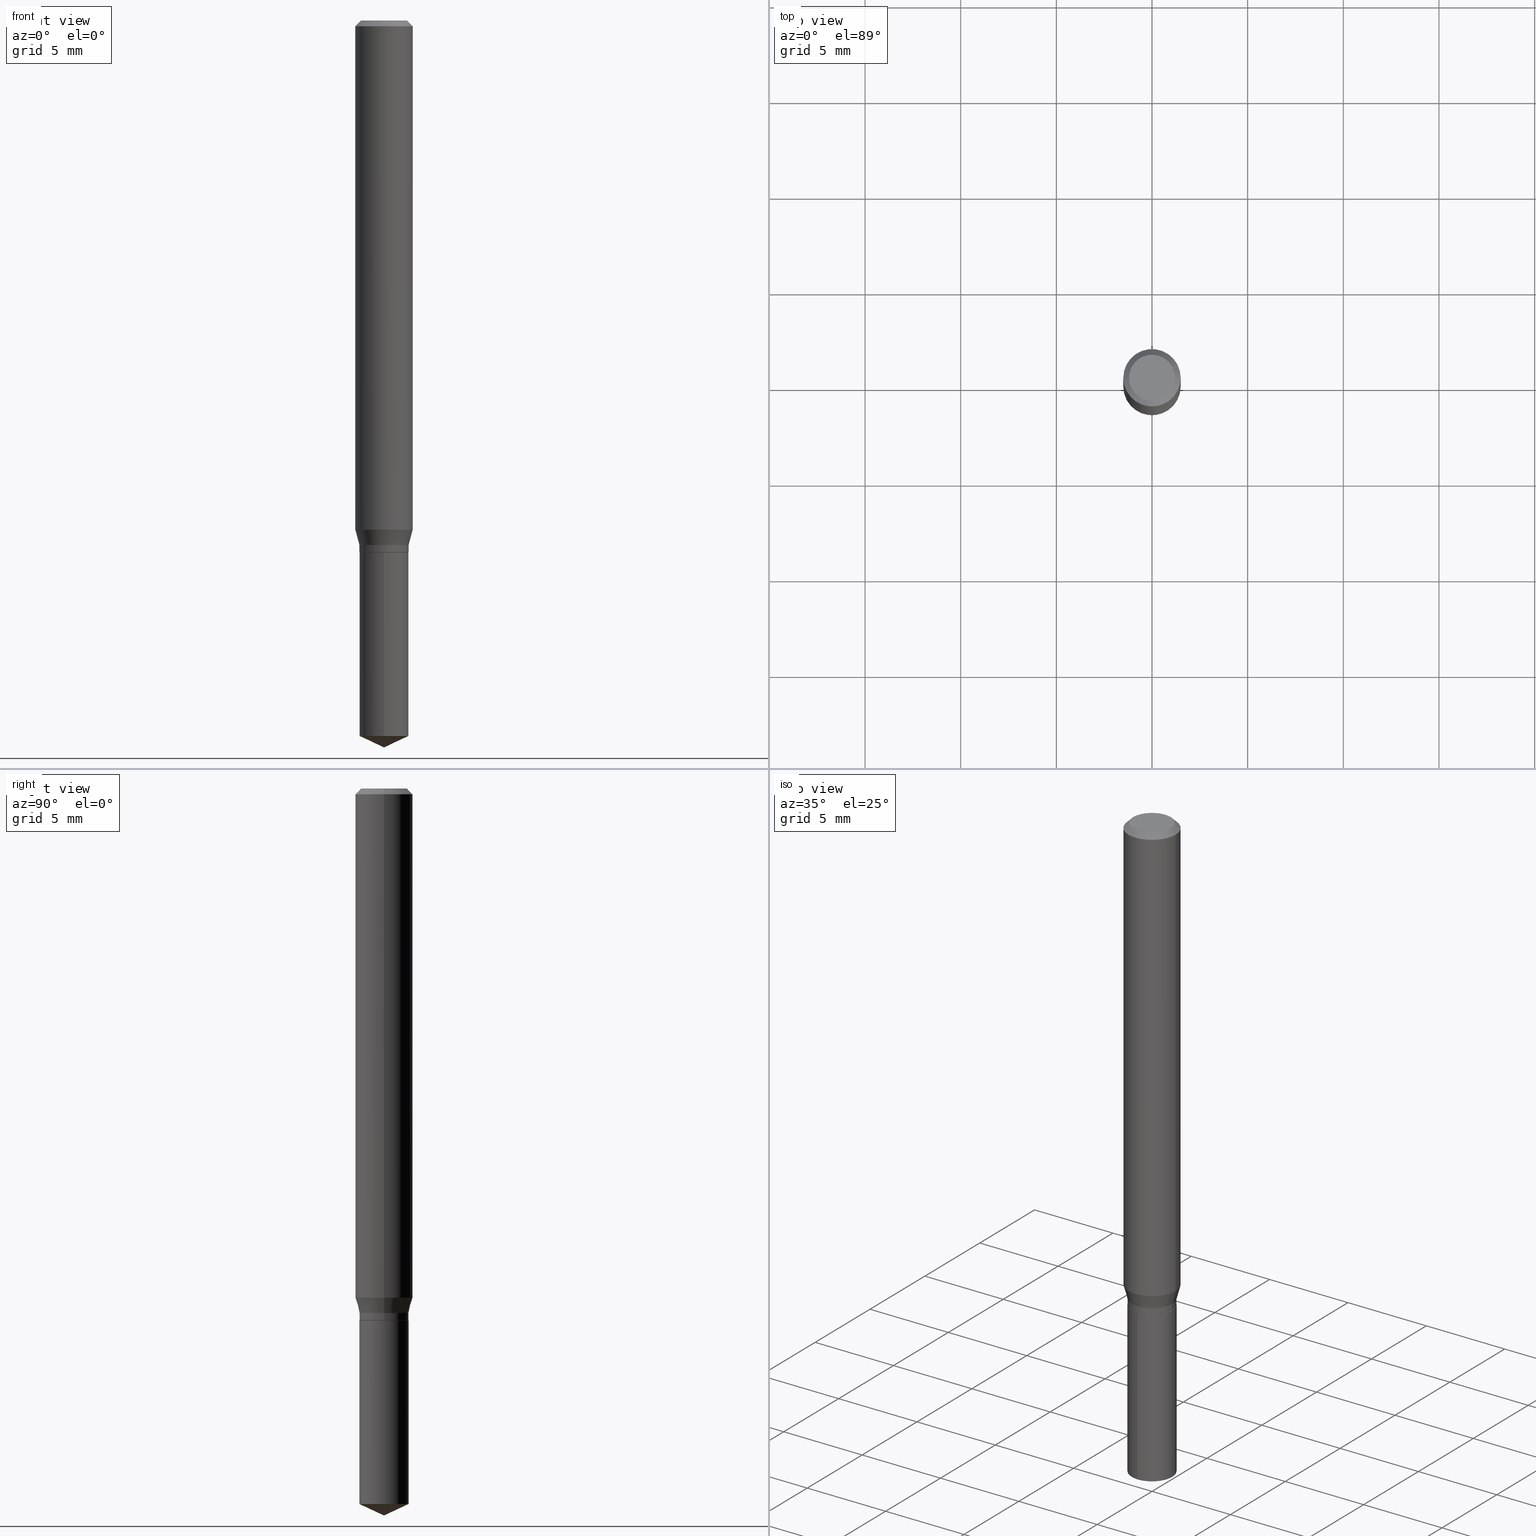
[diagram: canonical four-view strip — front | top / right | iso, engineering-drawing reading convention]
A machine part, canonical four-view strip (front | top / right | iso — engineering-drawing reading convention). The complete STEP part file that produces these views, byte-faithful:
ISO-10303-21;
HEADER;
FILE_DESCRIPTION (( 'STEP AP203' ),
    '1' );
FILE_NAME ('07669.STEP',
    '2024-04-24T00:43:24',
    ( '' ),
    ( '' ),
    'SwSTEP 2.0',
    'SolidWorks 2023',
    '' );
FILE_SCHEMA (( 'CONFIG_CONTROL_DESIGN' ));
ENDSEC;

DATA;
#1 = CARTESIAN_POINT ( 'NONE',  ( 3.595346242946467784E-16, 0.05059999999999487130, -1.472504832497357530 ) ) ;
#2 = APPROVAL_STATUS ( 'not_yet_approved' ) ;
#3 = EDGE_CURVE ( 'NONE', #26, #203, #301, .T. ) ;
#4 = VERTEX_POINT ( 'NONE', #1 ) ;
#5 = EDGE_LOOP ( 'NONE', ( #65, #190, #283, #432 ) ) ;
#6 = ORIENTED_EDGE ( 'NONE', *, *, #319, .F. ) ;
#7 = DIRECTION ( 'NONE',  ( -2.445468806185136877E-29, 3.491481338843145188E-15, 1.000000000000000000 ) ) ;
#8 = CLOSED_SHELL ( 'NONE', ( #185, #256, #265, #116, #273 ) ) ;
#9 = CIRCLE ( 'NONE', #302, 0.04724000000000000421 ) ;
#10 = COORDINATED_UNIVERSAL_TIME_OFFSET ( 5, 0, .BEHIND. ) ;
#11 = VERTEX_POINT ( 'NONE', #483 ) ;
#12 = LINE ( 'NONE', #137, #309 ) ;
#13 = ORIENTED_EDGE ( 'NONE', *, *, #314, .T. ) ;
#14 = FACE_OUTER_BOUND ( 'NONE', #462, .T. ) ;
#15 = EDGE_CURVE ( 'NONE', #267, #223, #191, .T. ) ;
#16 = CALENDAR_DATE ( 2024, 23, 4 ) ;
#17 = ORIENTED_EDGE ( 'NONE', *, *, #362, .T. ) ;
#18 = FACE_OUTER_BOUND ( 'NONE', #472, .T. ) ;
#19 = PRODUCT_DEFINITION_FORMATION_WITH_SPECIFIED_SOURCE ( 'ANY', '', #107, .NOT_KNOWN. ) ;
#20 = DIRECTION ( 'NONE',  ( -2.445458899330790108E-29, 3.491495526022433205E-15, 1.000000000000000000 ) ) ;
#21 = EDGE_LOOP ( 'NONE', ( #322, #187, #303, #175 ) ) ;
#22 = ORIENTED_EDGE ( 'NONE', *, *, #470, .T. ) ;
#23 = ORIENTED_EDGE ( 'NONE', *, *, #476, .T. ) ;
#24 = EDGE_CURVE ( 'NONE', #4, #465, #54, .T. ) ;
#25 = CARTESIAN_POINT ( 'NONE',  ( 4.132873053354867254E-48, -5.900647395337818946E-34, -1.690012582823346072E-19 ) ) ;
#26 = VERTEX_POINT ( 'NONE', #123 ) ;
#27 = DIRECTION ( 'NONE',  ( 6.982962677686265922E-15, 1.000000000000000000, -3.491495526022433599E-15 ) ) ;
#28 = CONICAL_SURFACE ( 'NONE', #104, 0.05009999999999999870, 0.7853981633972775267 ) ;
#29 = FACE_OUTER_BOUND ( 'NONE', #86, .T. ) ;
#30 = LOCAL_TIME ( 20, 43, 24.00000000000000000, #205 ) ;
#31 = CARTESIAN_POINT ( 'NONE',  ( 2.676565608369631794E-29, -3.821426325363822773E-15, -1.094499999999999806 ) ) ;
#32 = ADVANCED_FACE ( 'NONE', ( #236 ), #102, .T. ) ;
#33 = DIRECTION ( 'NONE',  ( -2.445468806185136597E-29, 3.491481338843145583E-15, 1.000000000000000000 ) ) ;
#34 = FACE_OUTER_BOUND ( 'NONE', #216, .T. ) ;
#35 = UNCERTAINTY_MEASURE_WITH_UNIT (LENGTH_MEASURE( 1.000000000000000082E-05 ), #459, 'distance_accuracy_value', 'NONE');
#36 = CARTESIAN_POINT ( 'NONE',  ( 8.265746106709734507E-48, -1.180129479067563789E-33, -3.380025165646692144E-19 ) ) ;
#37 = DIRECTION ( 'NONE',  ( -2.445458899330790108E-29, 3.491495526022433205E-15, 1.000000000000000000 ) ) ;
#38 = DIRECTION ( 'NONE',  ( -2.445468806185136597E-29, 3.491481338843145583E-15, 1.000000000000000000 ) ) ;
#39 = AXIS2_PLACEMENT_3D ( 'NONE', #255, #437, #46 ) ;
#40 = CC_DESIGN_PERSON_AND_ORGANIZATION_ASSIGNMENT ( #286, #210, ( #482 ) ) ;
#41 = DIRECTION ( 'NONE',  ( -2.445468806185136597E-29, 3.491481338843145583E-15, 1.000000000000000000 ) ) ;
#42 = PERSON_AND_ORGANIZATION ( #79, #120 ) ;
#43 = DIRECTION ( 'NONE',  ( -2.445468806185136597E-29, 3.491481338843145583E-15, 1.000000000000000000 ) ) ;
#44 = VECTOR ( 'NONE', #154, 39.37007874015748143 ) ;
#45 = DATE_AND_TIME ( #16, #490 ) ;
#46 = DIRECTION ( 'NONE',  ( 1.000000000000000000, -6.982962677686266711E-15, 4.876176775795936353E-29 ) ) ;
#47 = EDGE_CURVE ( 'NONE', #441, #171, #166, .T. ) ;
#48 = ORIENTED_EDGE ( 'NONE', *, *, #179, .F. ) ;
#49 = FACE_OUTER_BOUND ( 'NONE', #421, .T. ) ;
#50 = APPROVAL_ROLE ( '' ) ;
#51 = CARTESIAN_POINT ( 'NONE',  ( 2.676565608369631794E-29, -3.821426325363822773E-15, -1.094499999999999806 ) ) ;
#52 = CARTESIAN_POINT ( 'NONE',  ( 2.562274595626701165E-29, -3.658249049423866489E-15, -1.047764170676042550 ) ) ;
#53 = ORIENTED_EDGE ( 'NONE', *, *, #370, .F. ) ;
#54 = CIRCLE ( 'NONE', #455, 0.05059999999999999915 ) ;
#55 = CC_DESIGN_PERSON_AND_ORGANIZATION_ASSIGNMENT ( #91, #89, ( #19 ) ) ;
#56 = CALENDAR_DATE ( 2024, 23, 4 ) ;
#57 = CC_DESIGN_APPROVAL ( #235, ( #217 ) ) ;
#58 = DIRECTION ( 'NONE',  ( -2.445468806185136597E-29, 3.491481338843145583E-15, 1.000000000000000000 ) ) ;
#59 = ORIENTED_EDGE ( 'NONE', *, *, #179, .T. ) ;
#60 = DIRECTION ( 'NONE',  ( -2.445468806185136597E-29, 3.491481338843145583E-15, 1.000000000000000000 ) ) ;
#61 = VERTEX_POINT ( 'NONE', #75 ) ;
#62 = ORIENTED_EDGE ( 'NONE', *, *, #445, .F. ) ;
#63 = CARTESIAN_POINT ( 'NONE',  ( 2.675342873966538993E-29, -3.819680584694400481E-15, -1.093999999999999861 ) ) ;
#64 = DIRECTION ( 'NONE',  ( -2.445468806185136597E-29, 3.491481338843145583E-15, 1.000000000000000000 ) ) ;
#65 = ORIENTED_EDGE ( 'NONE', *, *, #228, .F. ) ;
#66 = DIRECTION ( 'NONE',  ( -2.445458899330790108E-29, 3.491495526022433205E-15, 1.000000000000000000 ) ) ;
#67 = LOCAL_TIME ( 20, 43, 24.00000000000000000, #10 ) ;
#68 = ORIENTED_EDGE ( 'NONE', *, *, #352, .T. ) ;
#69 = EDGE_CURVE ( 'NONE', #269, #223, #133, .T. ) ;
#70 = CARTESIAN_POINT ( 'NONE',  ( 3.600960889990339027E-29, -5.141228506843204661E-15, -1.472504832497357086 ) ) ;
#71 = CARTESIAN_POINT ( 'NONE',  ( -9.261924752013118283E-28, 1.322368428517963298E-13, 37.87397874015748300 ) ) ;
#72 = EDGE_CURVE ( 'NONE', #11, #171, #220, .T. ) ;
#73 = LINE ( 'NONE', #383, #457 ) ;
#74 = CIRCLE ( 'NONE', #143, 0.05009999999999999870 ) ;
#75 = CARTESIAN_POINT ( 'NONE',  ( -0.05059999999999999915, -3.434483572559293050E-15, -1.079299999999999926 ) ) ;
#76 = DIMENSIONAL_EXPONENTS ( 1.000000000000000000, 0.000000000000000000, 0.000000000000000000, 0.000000000000000000, 0.000000000000000000, 0.000000000000000000, 0.000000000000000000 ) ;
#77 = APPLICATION_PROTOCOL_DEFINITION ( 'international standard', 'config_control_design', 1994, #339 ) ;
#78 = LENGTH_MEASURE_WITH_UNIT ( LENGTH_MEASURE( 0.02539999999999999897 ), #158 );
#79 = PERSON ( 'UNSPECIFIED', 'UNSPECIFIED', 'UNSPECIFIED', ('UNSPECIFIED'), ('UNSPECIFIED'), ('UNSPECIFIED') ) ;
#80 = EDGE_LOOP ( 'NONE', ( #375, #366, #96, #108 ) ) ;
#81 = CARTESIAN_POINT ( 'NONE',  ( 0.05009999999999999870, -4.171272755515905499E-15, -1.094500000000000028 ) ) ;
#82 = AXIS2_PLACEMENT_3D ( 'NONE', #468, #58, #399 ) ;
#83 = LOCAL_TIME ( 20, 43, 24.00000000000000000, #178 ) ;
#84 = EDGE_CURVE ( 'NONE', #171, #441, #450, .T. ) ;
#85 = ORIENTED_EDGE ( 'NONE', *, *, #314, .F. ) ;
#86 = EDGE_LOOP ( 'NONE', ( #181, #257, #85, #354 ) ) ;
#87 = CARTESIAN_POINT ( 'NONE',  ( 2.888098660104663328E-31, -4.123439461173779030E-17, -0.01181000000000006871 ) ) ;
#88 = ORIENTED_EDGE ( 'NONE', *, *, #72, .F. ) ;
#89 = PERSON_AND_ORGANIZATION_ROLE ( 'creator' ) ;
#90 = DIRECTION ( 'NONE',  ( -2.445468806185136597E-29, 3.491481338843145583E-15, 1.000000000000000000 ) ) ;
#91 = PERSON_AND_ORGANIZATION ( #79, #120 ) ;
#92 = EDGE_CURVE ( 'NONE', #223, #61, #365, .T. ) ;
#93 = DIRECTION ( 'NONE',  ( -2.445458899330790108E-29, 3.491495526022433599E-15, 1.000000000000000000 ) ) ;
#94 = ORIENTED_EDGE ( 'NONE', *, *, #438, .F. ) ;
#95 = AXIS2_PLACEMENT_3D ( 'NONE', #36, #38, #320 ) ;
#96 = ORIENTED_EDGE ( 'NONE', *, *, #461, .T. ) ;
#97 = DIRECTION ( 'NONE',  ( 1.000000000000000000, -6.982962677686269077E-15, 0.000000000000000000 ) ) ;
#98 = COORDINATED_UNIVERSAL_TIME_OFFSET ( 5, 0, .BEHIND. ) ;
#99 = DIRECTION ( 'NONE',  ( -2.445468806185136877E-29, 3.491481338843145188E-15, 1.000000000000000000 ) ) ;
#100 = DATE_AND_TIME ( #297, #83 ) ;
#101 = CARTESIAN_POINT ( 'NONE',  ( 2.675342873966538993E-29, -3.819680584694400481E-15, -1.093999999999999861 ) ) ;
#102 = CONICAL_SURFACE ( 'NONE', #379, 0.05059999999999999915, 0.2617993877991497964 ) ;
#103 = ORIENTED_EDGE ( 'NONE', *, *, #3, .F. ) ;
#104 = AXIS2_PLACEMENT_3D ( 'NONE', #330, #298, #97 ) ;
#105 = CC_DESIGN_APPROVAL ( #400, ( #482 ) ) ;
#106 = CARTESIAN_POINT ( 'NONE',  ( 2.676565608369631794E-29, -3.821426325363822773E-15, -1.094499999999999806 ) ) ;
#107 = PRODUCT ( '07669', '07669', '', ( #165 ) ) ;
#108 = ORIENTED_EDGE ( 'NONE', *, *, #122, .F. ) ;
#109 = ORIENTED_EDGE ( 'NONE', *, *, #84, .F. ) ;
#110 = FACE_OUTER_BOUND ( 'NONE', #394, .T. ) ;
#111 = ADVANCED_FACE ( 'NONE', ( #443 ), #271, .T. ) ;
#112 = CYLINDRICAL_SURFACE ( 'NONE', #232, 0.05905000000000006771 ) ;
#113 = VECTOR ( 'NONE', #215, 39.37007874015748143 ) ;
#114 = DIRECTION ( 'NONE',  ( 2.445458899330789267E-29, -3.491495526022433599E-15, -1.000000000000000000 ) ) ;
#115 = DIRECTION ( 'NONE',  ( -2.445468806185136597E-29, 3.491481338843145583E-15, 1.000000000000000000 ) ) ;
#116 = ADVANCED_FACE ( 'NONE', ( #360 ), #206, .T. ) ;
#117 = DIRECTION ( 'NONE',  ( -6.982962677686265922E-15, -1.000000000000000000, 5.398909078387872188E-15 ) ) ;
#118 = CARTESIAN_POINT ( 'NONE',  ( 0.05904999999999999832, -4.535783407291118600E-16, -0.01181000000000006871 ) ) ;
#119 = APPLICATION_CONTEXT ( 'configuration controlled 3d designs of mechanical parts and assemblies' ) ;
#120 = ORGANIZATION ( 'UNSPECIFIED', 'UNSPECIFIED', '' ) ;
#121 = PERSON_AND_ORGANIZATION_ROLE ( 'design_owner' ) ;
#122 = EDGE_CURVE ( 'NONE', #223, #269, #263, .T. ) ;
#123 = CARTESIAN_POINT ( 'NONE',  ( 0.05905000000000013016, -4.070592995541242198E-15, -1.047764170676042550 ) ) ;
#124 = DIRECTION ( 'NONE',  ( -2.445458899330790108E-29, 3.491495526022433205E-15, 1.000000000000000000 ) ) ;
#125 = ORIENTED_EDGE ( 'NONE', *, *, #458, .T. ) ;
#126 = CONICAL_SURFACE ( 'NONE', #368, 0.05904999999999999832, 0.7853981633974452814 ) ;
#127 = ADVANCED_FACE ( 'NONE', ( #293 ), #126, .T. ) ;
#128 = APPROVAL_DATE_TIME ( #258, #331 ) ;
#129 = DIRECTION ( 'NONE',  ( 2.445468806185136597E-29, -3.491481338843145583E-15, -1.000000000000000000 ) ) ;
#130 = EDGE_LOOP ( 'NONE', ( #68, #125 ) ) ;
#131 = APPROVAL_DATE_TIME ( #100, #400 ) ;
#132 = CARTESIAN_POINT ( 'NONE',  ( 0.05059999999999999915, -3.533379114909250920E-16, 2.467345448552743290E-30 ) ) ;
#133 = CIRCLE ( 'NONE', #231, 0.05059999999999999915 ) ;
#134 = AXIS2_PLACEMENT_3D ( 'NONE', #70, #151, #117 ) ;
#135 = PERSON_AND_ORGANIZATION ( #79, #120 ) ;
#136 = CC_DESIGN_PERSON_AND_ORGANIZATION_ASSIGNMENT ( #170, #398, ( #217 ) ) ;
#137 = CARTESIAN_POINT ( 'NONE',  ( 3.658651059288795076E-29, -5.223626456482161457E-15, -1.496099999999999985 ) ) ;
#138 = DIRECTION ( 'NONE',  ( 1.000000000000000000, -6.982962677686269866E-15, 0.000000000000000000 ) ) ;
#139 = ORIENTED_EDGE ( 'NONE', *, *, #47, .T. ) ;
#140 = CARTESIAN_POINT ( 'NONE',  ( -0.05059999999999999915, -3.434483572559293050E-15, -1.093999999999999861 ) ) ;
#141 = EDGE_CURVE ( 'NONE', #211, #465, #12, .T. ) ;
#142 = CARTESIAN_POINT ( 'NONE',  ( 2.888098660104663328E-31, -4.123439461173779030E-17, -0.01181000000000006871 ) ) ;
#143 = AXIS2_PLACEMENT_3D ( 'NONE', #486, #60, #335 ) ;
#144 = EDGE_LOOP ( 'NONE', ( #248, #23, #363 ) ) ;
#145 = CC_DESIGN_SECURITY_CLASSIFICATION ( #217, ( #19 ) ) ;
#146 = DIRECTION ( 'NONE',  ( 1.000000000000000000, -6.982962677686266711E-15, 4.876176775795936353E-29 ) ) ;
#147 = ADVANCED_FACE ( 'NONE', ( #403 ), #300, .F. ) ;
#148 = CARTESIAN_POINT ( 'NONE',  ( -0.05904999999999999832, 3.711095515056362547E-16, -0.01181000000000006871 ) ) ;
#149 = DIRECTION ( 'NONE',  ( -6.982962677686267499E-15, -1.000000000000000000, 3.520397390770444404E-15 ) ) ;
#150 = EDGE_LOOP ( 'NONE', ( #405, #388, #317, #62 ) ) ;
#151 = DIRECTION ( 'NONE',  ( -2.445458899330790108E-29, 3.491495526022433205E-15, 1.000000000000000000 ) ) ;
#152 = VECTOR ( 'NONE', #93, 39.37007874015748143 ) ;
#153 = CIRCLE ( 'NONE', #359, 0.05905000000000013016 ) ;
#154 = DIRECTION ( 'NONE',  ( -0.2588190451025211281, 5.211531920934548675E-15, 0.9659258262890682012 ) ) ;
#155 = ADVANCED_FACE ( 'NONE', ( #18 ), #324, .T. ) ;
#156 = FACE_OUTER_BOUND ( 'NONE', #444, .T. ) ;
#157 = LINE ( 'NONE', #81, #464 ) ;
#158 =( LENGTH_UNIT ( ) NAMED_UNIT ( * ) SI_UNIT ( $, .METRE. ) );
#159 = VECTOR ( 'NONE', #272, 39.37007874015748143 ) ;
#160 = CC_DESIGN_DATE_AND_TIME_ASSIGNMENT ( #45, #218, ( #217 ) ) ;
#161 = EDGE_CURVE ( 'NONE', #465, #387, #327, .T. ) ;
#162 = EDGE_LOOP ( 'NONE', ( #333, #425, #139, #88 ) ) ;
#163 = APPROVAL_ROLE ( '' ) ;
#164 = ORIENTED_EDGE ( 'NONE', *, *, #161, .T. ) ;
#165 = MECHANICAL_CONTEXT ( 'NONE', #339, 'mechanical' ) ;
#166 = CIRCLE ( 'NONE', #251, 0.05904999999999999832 ) ;
#167 = CIRCLE ( 'NONE', #134, 0.05059999999999999915 ) ;
#168 = ADVANCED_FACE ( 'NONE', ( #259 ), #374, .T. ) ;
#169 = AXIS2_PLACEMENT_3D ( 'NONE', #239, #347, #348 ) ;
#170 = PERSON_AND_ORGANIZATION ( #79, #120 ) ;
#171 = VERTEX_POINT ( 'NONE', #289 ) ;
#172 = CARTESIAN_POINT ( 'NONE',  ( -3.533379114908983200E-16, -0.05060000000000382248, -1.094499999999999806 ) ) ;
#173 = CARTESIAN_POINT ( 'NONE',  ( -0.05059999999999999915, 3.595346242946106880E-16, -2.488981155668982269E-30 ) ) ;
#174 = SECURITY_CLASSIFICATION_LEVEL ( 'unclassified' ) ;
#175 = ORIENTED_EDGE ( 'NONE', *, *, #453, .F. ) ;
#176 = DIRECTION ( 'NONE',  ( -2.445468806185136877E-29, 3.491481338843145188E-15, 1.000000000000000000 ) ) ;
#177 = AXIS2_PLACEMENT_3D ( 'NONE', #71, #66, #311 ) ;
#178 = COORDINATED_UNIVERSAL_TIME_OFFSET ( 5, 0, .BEHIND. ) ;
#179 = EDGE_CURVE ( 'NONE', #285, #267, #477, .T. ) ;
#180 = CARTESIAN_POINT ( 'NONE',  ( -0.05905000000000013016, -3.238673563957526601E-15, -1.047764170676042550 ) ) ;
#181 = ORIENTED_EDGE ( 'NONE', *, *, #69, .T. ) ;
#182 = PERSON_AND_ORGANIZATION_ROLE ( 'design_supplier' ) ;
#183 = DIRECTION ( 'NONE',  ( 1.000000000000000000, -6.982962677686266711E-15, 0.000000000000000000 ) ) ;
#184 = DIRECTION ( 'NONE',  ( -2.445458899330790108E-29, 3.491495526022433205E-15, 1.000000000000000000 ) ) ;
#185 = ADVANCED_FACE ( 'NONE', ( #49 ), #364, .T. ) ;
#186 = CIRCLE ( 'NONE', #233, 0.05059999999999999915 ) ;
#187 = ORIENTED_EDGE ( 'NONE', *, *, #445, .T. ) ;
#188 = AXIS2_PLACEMENT_3D ( 'NONE', #418, #281, #382 ) ;
#189 = DIRECTION ( 'NONE',  ( 1.000000000000000000, -6.982962677686269077E-15, 0.000000000000000000 ) ) ;
#190 = ORIENTED_EDGE ( 'NONE', *, *, #352, .F. ) ;
#191 = LINE ( 'NONE', #227, #336 ) ;
#192 = CYLINDRICAL_SURFACE ( 'NONE', #411, 0.05059999999999999915 ) ;
#193 = LINE ( 'NONE', #372, #44 ) ;
#194 = DIRECTION ( 'NONE',  ( -0.7071067811864267805, 7.493145998869918709E-15, 0.7071067811866682540 ) ) ;
#195 = VECTOR ( 'NONE', #306, 39.37007874015748143 ) ;
#196 = VECTOR ( 'NONE', #204, 39.37007874015748854 ) ;
#197 = DIRECTION ( 'NONE',  ( 1.000000000000000000, -6.982962677686266711E-15, 4.876185090822587894E-29 ) ) ;
#198 = CARTESIAN_POINT ( 'NONE',  ( 3.658672935554494692E-29, -5.223595400746700193E-15, -1.496099999999999985 ) ) ;
#199 = EDGE_CURVE ( 'NONE', #269, #307, #266, .T. ) ;
#200 = FACE_OUTER_BOUND ( 'NONE', #245, .T. ) ;
#201 = AXIS2_PLACEMENT_3D ( 'NONE', #316, #280, #355 ) ;
#202 = PERSON_AND_ORGANIZATION ( #79, #120 ) ;
#203 = VERTEX_POINT ( 'NONE', #180 ) ;
#204 = DIRECTION ( 'NONE',  ( 6.439704144417032720E-15, 0.9063077870366524902, 0.4226182617406938902 ) ) ;
#205 = COORDINATED_UNIVERSAL_TIME_OFFSET ( 5, 0, .BEHIND. ) ;
#206 = CYLINDRICAL_SURFACE ( 'NONE', #442, 0.05059999999999999915 ) ;
#207 = DATE_AND_TIME ( #249, #30 ) ;
#208 = EDGE_LOOP ( 'NONE', ( #13, #17, #103, #6 ) ) ;
#209 = DIRECTION ( 'NONE',  ( -1.000000000000000000, 6.982962677686266711E-15, 0.000000000000000000 ) ) ;
#210 = PERSON_AND_ORGANIZATION_ROLE ( 'creator' ) ;
#211 = VERTEX_POINT ( 'NONE', #332 ) ;
#212 = CARTESIAN_POINT ( 'NONE',  ( 2.888098660104663328E-31, -4.123439461173779030E-17, -0.01181000000000006871 ) ) ;
#213 = CC_DESIGN_PERSON_AND_ORGANIZATION_ASSIGNMENT ( #417, #121, ( #107 ) ) ;
#214 = ORIENTED_EDGE ( 'NONE', *, *, #470, .F. ) ;
#215 = DIRECTION ( 'NONE',  ( -0.7071067811865453523, 2.468850131082234184E-15, -0.7071067811865496822 ) ) ;
#216 = EDGE_LOOP ( 'NONE', ( #94, #474, #22, #109 ) ) ;
#217 = SECURITY_CLASSIFICATION ( '', '', #174 ) ;
#218 = DATE_TIME_ROLE ( 'classification_date' ) ;
#219 = LINE ( 'NONE', #371, #159 ) ;
#220 = LINE ( 'NONE', #148, #113 ) ;
#221 = ADVANCED_FACE ( 'NONE', ( #14 ), #28, .T. ) ;
#222 = CYLINDRICAL_SURFACE ( 'NONE', #463, 0.05059999999999999915 ) ;
#223 = VERTEX_POINT ( 'NONE', #140 ) ;
#224 = DIRECTION ( 'NONE',  ( -2.445458899330790108E-29, 3.491495526022433205E-15, 1.000000000000000000 ) ) ;
#225 = PLANE ( 'NONE',  #451 ) ;
#226 = CARTESIAN_POINT ( 'NONE',  ( -9.261924752013118283E-28, 1.322368428517963298E-13, 37.87397874015748300 ) ) ;
#227 = CARTESIAN_POINT ( 'NONE',  ( -0.05009999999999999870, -3.465444414748013132E-15, -1.094500000000000028 ) ) ;
#228 = EDGE_CURVE ( 'NONE', #304, #441, #219, .T. ) ;
#229 = CARTESIAN_POINT ( 'NONE',  ( 0.04724000000000000421, -3.852183633974369345E-16, -3.380025165621689721E-19 ) ) ;
#230 = MANIFOLD_SOLID_BREP ( 'Body-Move/Copy2[1]', #8 ) ;
#231 = AXIS2_PLACEMENT_3D ( 'NONE', #63, #41, #288 ) ;
#232 = AXIS2_PLACEMENT_3D ( 'NONE', #449, #377, #146 ) ;
#233 = AXIS2_PLACEMENT_3D ( 'NONE', #279, #124, #487 ) ;
#234 = LINE ( 'NONE', #198, #196 ) ;
#235 = APPROVAL ( #328, 'UNSPECIFIED' ) ;
#236 = FACE_OUTER_BOUND ( 'NONE', #208, .T. ) ;
#237 =( NAMED_UNIT ( * ) PLANE_ANGLE_UNIT ( ) SI_UNIT ( $, .RADIAN. ) );
#238 = AXIS2_PLACEMENT_3D ( 'NONE', #212, #440, #183 ) ;
#239 = CARTESIAN_POINT ( 'NONE',  ( 5.928219277546781995E-30, -6.805465875329427996E-15, -1.094500000000000028 ) ) ;
#240 = VECTOR ( 'NONE', #345, 39.37007874015748143 ) ;
#241 = CIRCLE ( 'NONE', #188, 0.05059999999999999915 ) ;
#242 = ADVANCED_FACE ( 'NONE', ( #479 ), #222, .T. ) ;
#243 = CARTESIAN_POINT ( 'NONE',  ( 2.562274595626701165E-29, -3.658249049423866489E-15, -1.047764170676042550 ) ) ;
#244 = ORIENTED_EDGE ( 'NONE', *, *, #24, .T. ) ;
#245 = EDGE_LOOP ( 'NONE', ( #48, #250 ) ) ;
#246 = APPROVAL_STATUS ( 'not_yet_approved' ) ;
#247 = EDGE_LOOP ( 'NONE', ( #325, #244, #164, #53 ) ) ;
#248 = ORIENTED_EDGE ( 'NONE', *, *, #141, .F. ) ;
#249 = CALENDAR_DATE ( 2024, 23, 4 ) ;
#250 = ORIENTED_EDGE ( 'NONE', *, *, #408, .F. ) ;
#251 = AXIS2_PLACEMENT_3D ( 'NONE', #87, #356, #480 ) ;
#252 = DIRECTION ( 'NONE',  ( 2.445468806185136597E-29, -3.491481338843145583E-15, -1.000000000000000000 ) ) ;
#253 = AXIS2_PLACEMENT_3D ( 'NONE', #409, #64, #189 ) ;
#254 = APPROVAL_PERSON_ORGANIZATION ( #202, #400, #163 ) ;
#255 = CARTESIAN_POINT ( 'NONE',  ( 0.000000000000000000, 0.000000000000000000, 0.000000000000000000 ) ) ;
#256 = ADVANCED_FACE ( 'NONE', ( #484 ), #485, .T. ) ;
#257 = ORIENTED_EDGE ( 'NONE', *, *, #92, .T. ) ;
#258 = DATE_AND_TIME ( #56, #264 ) ;
#259 = FACE_OUTER_BOUND ( 'NONE', #5, .T. ) ;
#260 = ORIENTED_EDGE ( 'NONE', *, *, #341, .T. ) ;
#261 = COORDINATED_UNIVERSAL_TIME_OFFSET ( 5, 0, .BEHIND. ) ;
#262 = CARTESIAN_POINT ( 'NONE',  ( 2.888098660104663328E-31, -4.123439461173779030E-17, -0.01181000000000006871 ) ) ;
#263 = CIRCLE ( 'NONE', #321, 0.05059999999999999915 ) ;
#264 = LOCAL_TIME ( 20, 43, 24.00000000000000000, #98 ) ;
#265 = ADVANCED_FACE ( 'NONE', ( #110 ), #282, .T. ) ;
#266 = LINE ( 'NONE', #132, #416 ) ;
#267 = VERTEX_POINT ( 'NONE', #270 ) ;
#268 = LINE ( 'NONE', #342, #240 ) ;
#269 = VERTEX_POINT ( 'NONE', #376 ) ;
#270 = CARTESIAN_POINT ( 'NONE',  ( -0.05009999999999999870, -3.462795187573901536E-15, -1.094500000000000028 ) ) ;
#271 = CONICAL_SURFACE ( 'NONE', #337, 0.05059999999999999915, 0.2617993877991497964 ) ;
#272 = DIRECTION ( 'NONE',  ( 0.7071067811865453523, -7.319954787623248157E-15, -0.7071067811865496822 ) ) ;
#273 = ADVANCED_FACE ( 'NONE', ( #156 ), #225, .F. ) ;
#274 = DIRECTION ( 'NONE',  ( -6.982962677686265922E-15, -1.000000000000000000, 2.699454539193936094E-15 ) ) ;
#275 = CARTESIAN_POINT ( 'NONE',  ( -0.05905000000000006771, 4.195754854663396409E-16, -2.904631170795525045E-30 ) ) ;
#276 = AXIS2_PLACEMENT_3D ( 'NONE', #226, #224, #149 ) ;
#277 = EDGE_CURVE ( 'NONE', #4, #397, #268, .T. ) ;
#278 = DESIGN_CONTEXT ( 'detailed design', #119, 'design' ) ;
#279 = CARTESIAN_POINT ( 'NONE',  ( 2.676565608369631794E-29, -3.821426325363822773E-15, -1.094499999999999806 ) ) ;
#280 = DIRECTION ( 'NONE',  ( 0.000000000000000000, 0.000000000000000000, 1.000000000000000000 ) ) ;
#281 = DIRECTION ( 'NONE',  ( -2.445468806185136597E-29, 3.491481338843145583E-15, 1.000000000000000000 ) ) ;
#282 = CONICAL_SURFACE ( 'NONE', #276, 84.42940631927456252, 1.134464013796316895 ) ;
#283 = ORIENTED_EDGE ( 'NONE', *, *, #72, .T. ) ;
#284 = APPROVAL_PERSON_ORGANIZATION ( #135, #331, #427 ) ;
#285 = VERTEX_POINT ( 'NONE', #308 ) ;
#286 = PERSON_AND_ORGANIZATION ( #79, #120 ) ;
#287 = ORIENTED_EDGE ( 'NONE', *, *, #476, .F. ) ;
#288 = DIRECTION ( 'NONE',  ( 1.000000000000000000, -6.982962677686269866E-15, 0.000000000000000000 ) ) ;
#289 = CARTESIAN_POINT ( 'NONE',  ( -0.05904999999999999832, -1.430166236551461827E-15, -0.01181000000000006871 ) ) ;
#290 = ORIENTED_EDGE ( 'NONE', *, *, #47, .F. ) ;
#291 = PERSON_AND_ORGANIZATION ( #79, #120 ) ;
#292 = ADVANCED_FACE ( 'NONE', ( #29 ), #192, .T. ) ;
#293 = FACE_OUTER_BOUND ( 'NONE', #162, .T. ) ;
#294 = AXIS2_PLACEMENT_3D ( 'NONE', #106, #20, #434 ) ;
#295 = DATE_TIME_ROLE ( 'creation_date' ) ;
#296 = DIRECTION ( 'NONE',  ( -6.328713451373378056E-15, -0.9063077870366496036, 0.4226182617407002184 ) ) ;
#297 = CALENDAR_DATE ( 2024, 23, 4 ) ;
#298 = DIRECTION ( 'NONE',  ( -2.445468806185136597E-29, 3.491481338843145583E-15, 1.000000000000000000 ) ) ;
#299 = CC_DESIGN_PERSON_AND_ORGANIZATION_ASSIGNMENT ( #291, #182, ( #19 ) ) ;
#300 = PLANE ( 'NONE',  #489 ) ;
#301 = CIRCLE ( 'NONE', #401, 0.05905000000000013016 ) ;
#302 = AXIS2_PLACEMENT_3D ( 'NONE', #305, #33, #197 ) ;
#303 = ORIENTED_EDGE ( 'NONE', *, *, #319, .T. ) ;
#304 = VERTEX_POINT ( 'NONE', #229 ) ;
#305 = CARTESIAN_POINT ( 'NONE',  ( 8.265746106709734507E-48, -1.180129479067563789E-33, -3.380025165646692144E-19 ) ) ;
#306 = DIRECTION ( 'NONE',  ( 0.2588190451025211281, 1.565188264969623940E-15, 0.9659258262890682012 ) ) ;
#307 = VERTEX_POINT ( 'NONE', #481 ) ;
#308 = CARTESIAN_POINT ( 'NONE',  ( 0.05009999999999999870, -4.171272755515905499E-15, -1.094500000000000028 ) ) ;
#309 = VECTOR ( 'NONE', #296, 39.37007874015748854 ) ;
#310 = APPROVAL_PERSON_ORGANIZATION ( #42, #235, #50 ) ;
#311 = DIRECTION ( 'NONE',  ( -6.982962677686267499E-15, -1.000000000000000000, 3.520397390770444404E-15 ) ) ;
#312 = PRODUCT_RELATED_PRODUCT_CATEGORY ( 'detail', '', ( #107 ) ) ;
#313 = LINE ( 'NONE', #478, #195 ) ;
#314 = EDGE_CURVE ( 'NONE', #307, #61, #344, .T. ) ;
#315 = AXIS2_PLACEMENT_3D ( 'NONE', #452, #184, #274 ) ;
#316 = CARTESIAN_POINT ( 'NONE',  ( 0.000000000000000000, 0.000000000000000000, 0.000000000000000000 ) ) ;
#317 = ORIENTED_EDGE ( 'NONE', *, *, #199, .T. ) ;
#318 = PLANE ( 'NONE',  #169 ) ;
#319 = EDGE_CURVE ( 'NONE', #307, #26, #313, .T. ) ;
#320 = DIRECTION ( 'NONE',  ( 1.000000000000000000, -6.982962677686266711E-15, 4.876185090822587894E-29 ) ) ;
#321 = AXIS2_PLACEMENT_3D ( 'NONE', #101, #334, #475 ) ;
#322 = ORIENTED_EDGE ( 'NONE', *, *, #362, .F. ) ;
#323 = CIRCLE ( 'NONE', #95, 0.04724000000000000421 ) ;
#324 = CYLINDRICAL_SURFACE ( 'NONE', #39, 0.05905000000000006771 ) ;
#325 = ORIENTED_EDGE ( 'NONE', *, *, #277, .F. ) ;
#326 = ADVANCED_FACE ( 'NONE', ( #34 ), #112, .T. ) ;
#327 = LINE ( 'NONE', #172, #152 ) ;
#328 = APPROVAL_STATUS ( 'not_yet_approved' ) ;
#329 = VECTOR ( 'NONE', #99, 39.37007874015748143 ) ;
#330 = CARTESIAN_POINT ( 'NONE',  ( 2.676565608369632355E-29, -3.821426325363822773E-15, -1.094500000000000028 ) ) ;
#331 = APPROVAL ( #246, 'UNSPECIFIED' ) ;
#332 = CARTESIAN_POINT ( 'NONE',  ( 3.658651059288794515E-29, -5.223626456482161457E-15, -1.496099999999999985 ) ) ;
#333 = ORIENTED_EDGE ( 'NONE', *, *, #458, .F. ) ;
#334 = DIRECTION ( 'NONE',  ( -2.445468806185136597E-29, 3.491481338843145583E-15, 1.000000000000000000 ) ) ;
#335 = DIRECTION ( 'NONE',  ( 1.000000000000000000, -6.982962677686269077E-15, 0.000000000000000000 ) ) ;
#336 = VECTOR ( 'NONE', #194, 39.37007874015748143 ) ;
#337 = AXIS2_PLACEMENT_3D ( 'NONE', #369, #43, #393 ) ;
#338 =( GEOMETRIC_REPRESENTATION_CONTEXT ( 3 ) GLOBAL_UNCERTAINTY_ASSIGNED_CONTEXT ( ( #35 ) ) GLOBAL_UNIT_ASSIGNED_CONTEXT ( ( #459, #237, #386 ) ) REPRESENTATION_CONTEXT ( 'NONE', 'WORKASPACE' ) );
#339 = APPLICATION_CONTEXT ( 'configuration controlled 3d designs of mechanical parts and assemblies' ) ;
#340 = DIRECTION ( 'NONE',  ( 1.000000000000000000, -6.982962677686266711E-15, 4.876176775795935232E-29 ) ) ;
#341 = EDGE_CURVE ( 'NONE', #465, #4, #167, .T. ) ;
#342 = CARTESIAN_POINT ( 'NONE',  ( 3.595346242946374106E-16, 0.05059999999999617581, -1.094500000000000028 ) ) ;
#343 = CARTESIAN_POINT ( 'NONE',  ( 0.000000000000000000, 0.000000000000000000, 0.000000000000000000 ) ) ;
#344 = CIRCLE ( 'NONE', #402, 0.05059999999999999915 ) ;
#345 = DIRECTION ( 'NONE',  ( -2.445458899330790108E-29, 3.491495526022433599E-15, 1.000000000000000000 ) ) ;
#346 = PRODUCT_DEFINITION_SHAPE ( 'NONE', 'NONE',  #482 ) ;
#347 = DIRECTION ( 'NONE',  ( -2.438088387897960049E-29, 3.491481338843145188E-15, 1.000000000000000000 ) ) ;
#348 = DIRECTION ( 'NONE',  ( 1.000000000000000000, -6.982962677686265922E-15, 4.876176775795935793E-29 ) ) ;
#349 = CLOSED_SHELL ( 'NONE', ( #221, #127, #155, #32, #292, #242, #111, #326, #168, #147, #488, #419 ) ) ;
#350 = DIRECTION ( 'NONE',  ( 1.000000000000000000, -6.982962677686265133E-15, 0.000000000000000000 ) ) ;
#351 = CARTESIAN_POINT ( 'NONE',  ( 2.639394482515617468E-29, -3.768355809013406698E-15, -1.079299999999999926 ) ) ;
#352 = EDGE_CURVE ( 'NONE', #11, #304, #9, .T. ) ;
#353 = DIRECTION ( 'NONE',  ( -2.445468806185136877E-29, 3.491481338843145188E-15, 1.000000000000000000 ) ) ;
#354 = ORIENTED_EDGE ( 'NONE', *, *, #199, .F. ) ;
#355 = DIRECTION ( 'NONE',  ( 1.000000000000000000, 0.000000000000000000, 0.000000000000000000 ) ) ;
#356 = DIRECTION ( 'NONE',  ( -2.445468806185136597E-29, 3.491481338843145583E-15, 1.000000000000000000 ) ) ;
#357 = ORIENTED_EDGE ( 'NONE', *, *, #141, .T. ) ;
#358 = APPROVAL_DATE_TIME ( #207, #235 ) ;
#359 = AXIS2_PLACEMENT_3D ( 'NONE', #243, #415, #466 ) ;
#360 = FACE_OUTER_BOUND ( 'NONE', #247, .T. ) ;
#361 = DIRECTION ( 'NONE',  ( -2.445468806185136597E-29, 3.491481338843145583E-15, 1.000000000000000000 ) ) ;
#362 = EDGE_CURVE ( 'NONE', #61, #203, #193, .T. ) ;
#363 = ORIENTED_EDGE ( 'NONE', *, *, #341, .F. ) ;
#364 = CYLINDRICAL_SURFACE ( 'NONE', #294, 0.05059999999999999915 ) ;
#365 = LINE ( 'NONE', #173, #329 ) ;
#366 = ORIENTED_EDGE ( 'NONE', *, *, #408, .T. ) ;
#367 = ORIENTED_EDGE ( 'NONE', *, *, #69, .F. ) ;
#368 = AXIS2_PLACEMENT_3D ( 'NONE', #142, #129, #396 ) ;
#369 = CARTESIAN_POINT ( 'NONE',  ( 2.639394482515617468E-29, -3.768355809013406698E-15, -1.079299999999999926 ) ) ;
#370 = EDGE_CURVE ( 'NONE', #397, #387, #392, .T. ) ;
#371 = CARTESIAN_POINT ( 'NONE',  ( 0.05904999999999999832, -4.463468013801466955E-16, -0.01181000000000006871 ) ) ;
#372 = CARTESIAN_POINT ( 'NONE',  ( -0.05059999999999999915, -3.408821184718796158E-15, -1.079299999999999926 ) ) ;
#373 = DIRECTION ( 'NONE',  ( -2.445468806185136597E-29, 3.491481338843145583E-15, 1.000000000000000000 ) ) ;
#374 = CONICAL_SURFACE ( 'NONE', #422, 0.05904999999999999832, 0.7853981633974452814 ) ;
#375 = ORIENTED_EDGE ( 'NONE', *, *, #15, .F. ) ;
#376 = CARTESIAN_POINT ( 'NONE',  ( 0.05059999999999999915, -4.173018496185326214E-15, -1.093999999999999861 ) ) ;
#377 = DIRECTION ( 'NONE',  ( -2.445468806185136597E-29, 3.491481338843145583E-15, 1.000000000000000000 ) ) ;
#378 = DIRECTION ( 'NONE',  ( -2.445468806185136597E-29, 3.491481338843145583E-15, 1.000000000000000000 ) ) ;
#379 = AXIS2_PLACEMENT_3D ( 'NONE', #351, #90, #138 ) ;
#380 = VECTOR ( 'NONE', #353, 39.37007874015748143 ) ;
#381 = DIRECTION ( 'NONE',  ( 0.7071067811864267805, -2.468850131080992517E-15, 0.7071067811866682540 ) ) ;
#382 = DIRECTION ( 'NONE',  ( 1.000000000000000000, -6.982962677686269866E-15, 0.000000000000000000 ) ) ;
#383 = CARTESIAN_POINT ( 'NONE',  ( 0.05905000000000006771, -4.123439461173745257E-16, 2.879382386107503723E-30 ) ) ;
#384 = ORIENTED_EDGE ( 'NONE', *, *, #461, .F. ) ;
#385 = CARTESIAN_POINT ( 'NONE',  ( -3.533379114908891002E-16, -0.05060000000000515474, -1.472504832497356864 ) ) ;
#386 =( NAMED_UNIT ( * ) SI_UNIT ( $, .STERADIAN. ) SOLID_ANGLE_UNIT ( ) );
#387 = VERTEX_POINT ( 'NONE', #414 ) ;
#388 = ORIENTED_EDGE ( 'NONE', *, *, #122, .T. ) ;
#389 = CARTESIAN_POINT ( 'NONE',  ( 3.600960889990339027E-29, -5.141228506843204661E-15, -1.472504832497357086 ) ) ;
#390 = ORIENTED_EDGE ( 'NONE', *, *, #3, .T. ) ;
#391 = CALENDAR_DATE ( 2024, 23, 4 ) ;
#392 = CIRCLE ( 'NONE', #315, 0.05059999999999999915 ) ;
#393 = DIRECTION ( 'NONE',  ( 1.000000000000000000, -6.982962677686269866E-15, 0.000000000000000000 ) ) ;
#394 = EDGE_LOOP ( 'NONE', ( #287, #357, #429 ) ) ;
#395 = MANIFOLD_SOLID_BREP ( 'Body-Move/Copy2[2]', #349 ) ;
#396 = DIRECTION ( 'NONE',  ( -1.000000000000000000, 6.982962677686266711E-15, 0.000000000000000000 ) ) ;
#397 = VERTEX_POINT ( 'NONE', #406 ) ;
#398 = PERSON_AND_ORGANIZATION_ROLE ( 'classification_officer' ) ;
#399 = DIRECTION ( 'NONE',  ( 1.000000000000000000, -6.982962677686269077E-15, 0.000000000000000000 ) ) ;
#400 = APPROVAL ( #2, 'UNSPECIFIED' ) ;
#401 = AXIS2_PLACEMENT_3D ( 'NONE', #52, #361, #350 ) ;
#402 = AXIS2_PLACEMENT_3D ( 'NONE', #412, #378, #447 ) ;
#403 = FACE_OUTER_BOUND ( 'NONE', #130, .T. ) ;
#404 = ADVANCED_BREP_SHAPE_REPRESENTATION ( '07669', ( #230, #395, #201 ), #338 ) ;
#405 = ORIENTED_EDGE ( 'NONE', *, *, #92, .F. ) ;
#406 = CARTESIAN_POINT ( 'NONE',  ( 3.595346242946467291E-16, 0.05059999999999618275, -1.094500000000000028 ) ) ;
#407 = ORIENTED_EDGE ( 'NONE', *, *, #438, .T. ) ;
#408 = EDGE_CURVE ( 'NONE', #267, #285, #74, .T. ) ;
#409 = CARTESIAN_POINT ( 'NONE',  ( 2.676565608369632355E-29, -3.821426325363822773E-15, -1.094500000000000028 ) ) ;
#410 = DIRECTION ( 'NONE',  ( 1.000000000000000000, -6.982962677686266711E-15, 4.876176775795935232E-29 ) ) ;
#411 = AXIS2_PLACEMENT_3D ( 'NONE', #454, #373, #410 ) ;
#412 = CARTESIAN_POINT ( 'NONE',  ( 2.639394482515617468E-29, -3.768355809013406698E-15, -1.079299999999999926 ) ) ;
#413 = CC_DESIGN_DATE_AND_TIME_ASSIGNMENT ( #436, #295, ( #482 ) ) ;
#414 = CARTESIAN_POINT ( 'NONE',  ( -3.533379114908983200E-16, -0.05060000000000382248, -1.094499999999999806 ) ) ;
#415 = DIRECTION ( 'NONE',  ( -2.445468806185136597E-29, 3.491481338843145583E-15, 1.000000000000000000 ) ) ;
#416 = VECTOR ( 'NONE', #176, 39.37007874015748143 ) ;
#417 = PERSON_AND_ORGANIZATION ( #79, #120 ) ;
#418 = CARTESIAN_POINT ( 'NONE',  ( 2.639394482515617468E-29, -3.768355809013406698E-15, -1.079299999999999926 ) ) ;
#419 = ADVANCED_FACE ( 'NONE', ( #446 ), #456, .T. ) ;
#420 = APPLICATION_PROTOCOL_DEFINITION ( 'international standard', 'config_control_design', 1994, #119 ) ;
#421 = EDGE_LOOP ( 'NONE', ( #260, #467, #439, #435 ) ) ;
#422 = AXIS2_PLACEMENT_3D ( 'NONE', #262, #252, #209 ) ;
#423 = LINE ( 'NONE', #275, #380 ) ;
#424 = ORIENTED_EDGE ( 'NONE', *, *, #15, .T. ) ;
#425 = ORIENTED_EDGE ( 'NONE', *, *, #228, .T. ) ;
#426 = EDGE_CURVE ( 'NONE', #387, #397, #186, .T. ) ;
#427 = APPROVAL_ROLE ( '' ) ;
#428 = ORIENTED_EDGE ( 'NONE', *, *, #426, .T. ) ;
#429 = ORIENTED_EDGE ( 'NONE', *, *, #24, .F. ) ;
#430 = DIRECTION ( 'NONE',  ( -6.982962677686265922E-15, -1.000000000000000000, 2.699454539193936094E-15 ) ) ;
#431 = SHAPE_DEFINITION_REPRESENTATION ( #346, #404 ) ;
#432 = ORIENTED_EDGE ( 'NONE', *, *, #84, .T. ) ;
#433 = CC_DESIGN_APPROVAL ( #331, ( #19 ) ) ;
#434 = DIRECTION ( 'NONE',  ( -6.982962677686265922E-15, -1.000000000000000000, 2.699454539193936094E-15 ) ) ;
#435 = ORIENTED_EDGE ( 'NONE', *, *, #161, .F. ) ;
#436 = DATE_AND_TIME ( #391, #67 ) ;
#437 = DIRECTION ( 'NONE',  ( -2.445468806185136597E-29, 3.491481338843145583E-15, 1.000000000000000000 ) ) ;
#438 = EDGE_CURVE ( 'NONE', #203, #171, #423, .T. ) ;
#439 = ORIENTED_EDGE ( 'NONE', *, *, #426, .F. ) ;
#440 = DIRECTION ( 'NONE',  ( -2.445468806185136597E-29, 3.491481338843145583E-15, 1.000000000000000000 ) ) ;
#441 = VERTEX_POINT ( 'NONE', #118 ) ;
#442 = AXIS2_PLACEMENT_3D ( 'NONE', #51, #471, #430 ) ;
#443 = FACE_OUTER_BOUND ( 'NONE', #21, .T. ) ;
#444 = EDGE_LOOP ( 'NONE', ( #428, #448 ) ) ;
#445 = EDGE_CURVE ( 'NONE', #61, #307, #241, .T. ) ;
#446 = FACE_OUTER_BOUND ( 'NONE', #80, .T. ) ;
#447 = DIRECTION ( 'NONE',  ( 1.000000000000000000, -6.982962677686269866E-15, 0.000000000000000000 ) ) ;
#448 = ORIENTED_EDGE ( 'NONE', *, *, #370, .T. ) ;
#449 = CARTESIAN_POINT ( 'NONE',  ( 0.000000000000000000, 0.000000000000000000, 0.000000000000000000 ) ) ;
#450 = CIRCLE ( 'NONE', #238, 0.05904999999999999832 ) ;
#451 = AXIS2_PLACEMENT_3D ( 'NONE', #31, #114, #27 ) ;
#452 = CARTESIAN_POINT ( 'NONE',  ( 2.676565608369631794E-29, -3.821426325363822773E-15, -1.094499999999999806 ) ) ;
#453 = EDGE_CURVE ( 'NONE', #203, #26, #153, .T. ) ;
#454 = CARTESIAN_POINT ( 'NONE',  ( 0.000000000000000000, 0.000000000000000000, 0.000000000000000000 ) ) ;
#455 = AXIS2_PLACEMENT_3D ( 'NONE', #389, #37, #460 ) ;
#456 = CONICAL_SURFACE ( 'NONE', #253, 0.05009999999999999870, 0.7853981633972775267 ) ;
#457 = VECTOR ( 'NONE', #7, 39.37007874015748143 ) ;
#458 = EDGE_CURVE ( 'NONE', #304, #11, #323, .T. ) ;
#459 =( CONVERSION_BASED_UNIT ( 'INCH', #78 ) LENGTH_UNIT ( ) NAMED_UNIT ( #76 ) );
#460 = DIRECTION ( 'NONE',  ( -6.982962677686265922E-15, -1.000000000000000000, 5.398909078387872188E-15 ) ) ;
#461 = EDGE_CURVE ( 'NONE', #285, #269, #157, .T. ) ;
#462 = EDGE_LOOP ( 'NONE', ( #59, #424, #367, #384 ) ) ;
#463 = AXIS2_PLACEMENT_3D ( 'NONE', #343, #115, #340 ) ;
#464 = VECTOR ( 'NONE', #381, 39.37007874015748143 ) ;
#465 = VERTEX_POINT ( 'NONE', #385 ) ;
#466 = DIRECTION ( 'NONE',  ( 1.000000000000000000, -6.982962677686265133E-15, 0.000000000000000000 ) ) ;
#467 = ORIENTED_EDGE ( 'NONE', *, *, #277, .T. ) ;
#468 = CARTESIAN_POINT ( 'NONE',  ( 2.676565608369632355E-29, -3.821426325363822773E-15, -1.094500000000000028 ) ) ;
#469 = DIRECTION ( 'NONE',  ( -1.000000000000000000, 6.982962677686265922E-15, -4.876176775795935793E-29 ) ) ;
#470 = EDGE_CURVE ( 'NONE', #26, #441, #73, .T. ) ;
#471 = DIRECTION ( 'NONE',  ( -2.445458899330790108E-29, 3.491495526022433205E-15, 1.000000000000000000 ) ) ;
#472 = EDGE_LOOP ( 'NONE', ( #390, #407, #290, #214 ) ) ;
#473 = DIRECTION ( 'NONE',  ( 2.438088387897960049E-29, -3.491481338843145188E-15, -1.000000000000000000 ) ) ;
#474 = ORIENTED_EDGE ( 'NONE', *, *, #453, .T. ) ;
#475 = DIRECTION ( 'NONE',  ( 1.000000000000000000, -6.982962677686269866E-15, 0.000000000000000000 ) ) ;
#476 = EDGE_CURVE ( 'NONE', #211, #4, #234, .T. ) ;
#477 = CIRCLE ( 'NONE', #82, 0.05009999999999999870 ) ;
#478 = CARTESIAN_POINT ( 'NONE',  ( 0.05059999999999999915, -4.121693720504331642E-15, -1.079299999999999926 ) ) ;
#479 = FACE_OUTER_BOUND ( 'NONE', #150, .T. ) ;
#480 = DIRECTION ( 'NONE',  ( 1.000000000000000000, -6.982962677686266711E-15, 0.000000000000000000 ) ) ;
#481 = CARTESIAN_POINT ( 'NONE',  ( 0.05059999999999999915, -4.121693720504331642E-15, -1.079299999999999926 ) ) ;
#482 = PRODUCT_DEFINITION ( 'UNKNOWN', '', #19, #278 ) ;
#483 = CARTESIAN_POINT ( 'NONE',  ( -0.04724000000000000421, 3.504923541997677355E-16, -3.380025165670481712E-19 ) ) ;
#484 = FACE_OUTER_BOUND ( 'NONE', #144, .T. ) ;
#485 = CONICAL_SURFACE ( 'NONE', #177, 84.42940631927456252, 1.134464013796316895 ) ;
#486 = CARTESIAN_POINT ( 'NONE',  ( 2.676565608369632355E-29, -3.821426325363822773E-15, -1.094500000000000028 ) ) ;
#487 = DIRECTION ( 'NONE',  ( -6.982962677686265922E-15, -1.000000000000000000, 2.699454539193936094E-15 ) ) ;
#488 = ADVANCED_FACE ( 'NONE', ( #200 ), #318, .F. ) ;
#489 = AXIS2_PLACEMENT_3D ( 'NONE', #25, #473, #469 ) ;
#490 = LOCAL_TIME ( 20, 43, 24.00000000000000000, #261 ) ;
ENDSEC;
END-ISO-10303-21;
